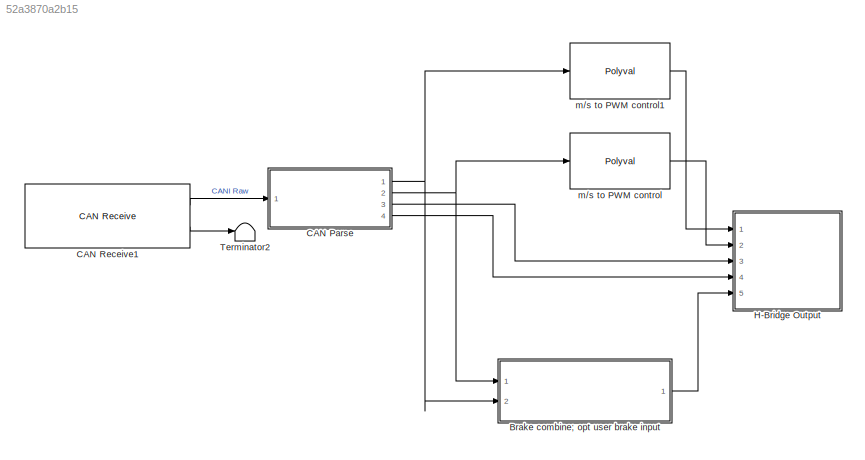
MODEL slx_52a3870a2b15
KIND model
CONFIG AbsTol = auto
CONFIG EnableMultiTasking = off
CONFIG FixedStep = 0.002
CONFIG MaxStep = 1
CONFIG MinStep = auto
CONFIG RelTol = 100e-3
CONFIG SampleTimeConstraint = Unconstrained
CONFIG SolverName = ode3
CONFIG StartTime = 0.0
CONFIG StopTime = inf
WORKSPACE source: mxarray member
WORKSPACE der = -0.0409742647059
WORKSPACE integ = 3.47058823529
WORKSPACE prop = 3.48235294118
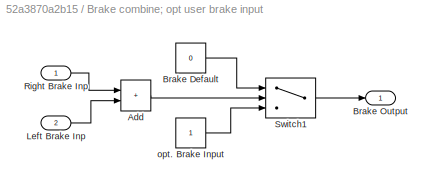
BLOCK [SubSystem] Brake combine; opt user brake input
  Ports = [2, 1]
  RequestExecContextInheritance = off
BLOCK [Sum] Brake combine; opt user brake input/Add
  IconShape = rectangular
  Ports = [2, 1]
BLOCK [Constant] Brake combine; opt user brake input/Brake Default
  Value = 0
BLOCK [Outport] Brake combine; opt user brake input/Brake Output
BLOCK [Inport] Brake combine; opt user brake input/Left Brake Inp
  Port = 2
BLOCK [Inport] Brake combine; opt user brake input/Right Brake Inp
BLOCK [Switch] Brake combine; opt user brake input/Switch1
  Criteria = u2 ~= 0
  InputSameDT = off
  SaturateOnIntegerOverflow = off
BLOCK [Constant] Brake combine; opt user brake input/opt. Brake Input
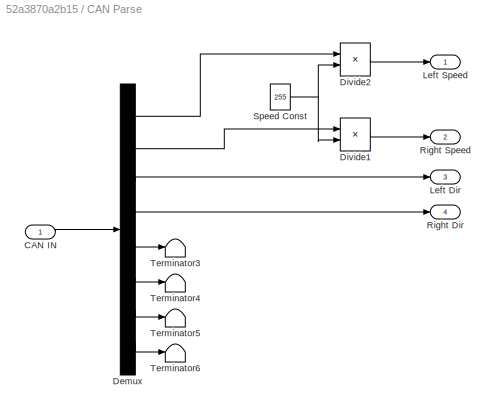
BLOCK [SubSystem] CAN Parse
  Ports = [1, 4]
  RequestExecContextInheritance = off
BLOCK [Inport] CAN Parse/CAN IN
BLOCK [Demux] CAN Parse/Demux
  Outputs = 8
  Ports = [1, 8]
BLOCK [Product] CAN Parse/Divide1
  Inputs = */
  Ports = [2, 1]
  RndMeth = Zero
  SaturateOnIntegerOverflow = on
BLOCK [Product] CAN Parse/Divide2
  Inputs = */
  Ports = [2, 1]
  RndMeth = Zero
  SaturateOnIntegerOverflow = on
BLOCK [Outport] CAN Parse/Left Dir
  Port = 3
  VectorParamsAs1DForOutWhenUnconnected = off
BLOCK [Outport] CAN Parse/Left Speed
  VectorParamsAs1DForOutWhenUnconnected = off
BLOCK [Outport] CAN Parse/Right Dir
  Port = 4
  VectorParamsAs1DForOutWhenUnconnected = off
BLOCK [Outport] CAN Parse/Right Speed
  Port = 2
  VectorParamsAs1DForOutWhenUnconnected = off
BLOCK [Constant] CAN Parse/Speed Const
  Value = 255
BLOCK [Terminator] CAN Parse/Terminator3
BLOCK [Terminator] CAN Parse/Terminator4
BLOCK [Terminator] CAN Parse/Terminator5
BLOCK [Terminator] CAN Parse/Terminator6
BLOCK [Reference] CAN Receive1  REF=arduinolib/CAN Receive
  Ports = [0, 2]
  SourceBlock = arduinolib/CAN Receive
  SourceProductBaseCode = ARDUINO
  SourceType = codertarget.arduinobase.internal.arduinoCANReceive
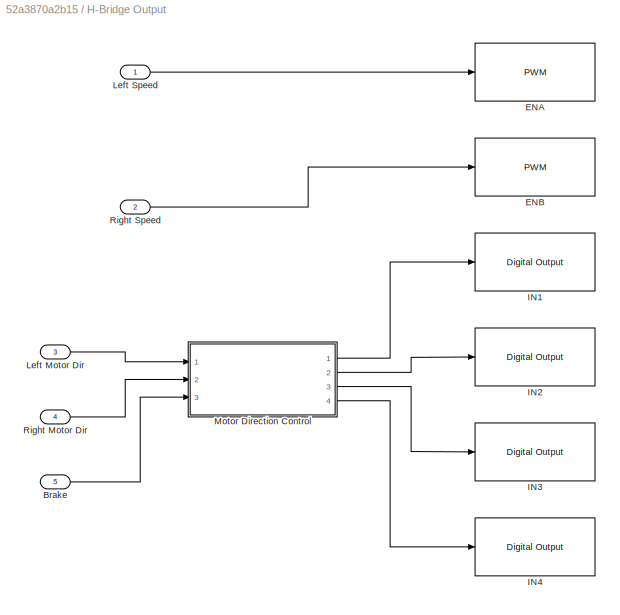
BLOCK [SubSystem] H-Bridge Output
  Ports = [5]
  RequestExecContextInheritance = off
BLOCK [Inport] H-Bridge Output/Brake
  Port = 5
BLOCK [Reference] H-Bridge Output/ENA  REF=arduinolib/PWM
  Ports = [1]
  SourceBlock = arduinolib/PWM
  SourceProductBaseCode = ARDUINO
  SourceType = Arduino PWM
BLOCK [Reference] H-Bridge Output/ENB  REF=arduinolib/PWM
  Ports = [1]
  SourceBlock = arduinolib/PWM
  SourceProductBaseCode = ARDUINO
  SourceType = Arduino PWM
BLOCK [Reference] H-Bridge Output/IN1  REF=arduinolib/Digital Output
  Ports = [1]
  SourceBlock = arduinolib/Digital Output
  SourceProductBaseCode = ARDUINO
  SourceType = Arduino Digital Output
BLOCK [Reference] H-Bridge Output/IN2  REF=arduinolib/Digital Output
  Ports = [1]
  SourceBlock = arduinolib/Digital Output
  SourceProductBaseCode = ARDUINO
  SourceType = Arduino Digital Output
BLOCK [Reference] H-Bridge Output/IN3  REF=arduinolib/Digital Output
  Ports = [1]
  SourceBlock = arduinolib/Digital Output
  SourceProductBaseCode = ARDUINO
  SourceType = Arduino Digital Output
BLOCK [Reference] H-Bridge Output/IN4  REF=arduinolib/Digital Output
  Ports = [1]
  SourceBlock = arduinolib/Digital Output
  SourceProductBaseCode = ARDUINO
  SourceType = Arduino Digital Output
BLOCK [Inport] H-Bridge Output/Left Motor Dir
  Port = 3
BLOCK [Inport] H-Bridge Output/Left Speed
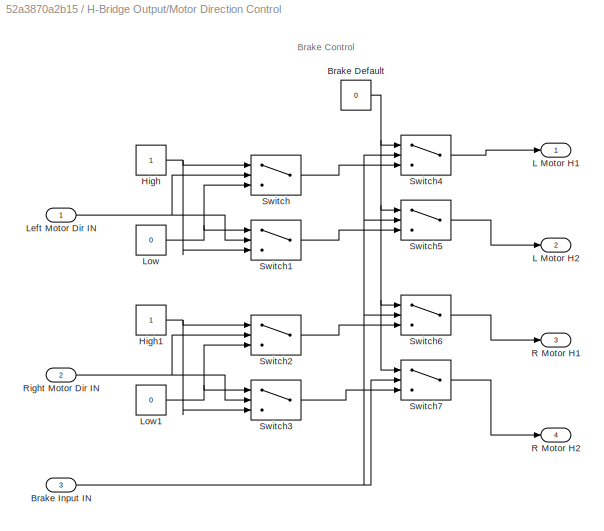
BLOCK [SubSystem] H-Bridge Output/Motor Direction Control
  Ports = [3, 4]
  RequestExecContextInheritance = off
BLOCK [Constant] H-Bridge Output/Motor Direction Control/Brake Default
  Value = 0
BLOCK [Inport] H-Bridge Output/Motor Direction Control/Brake Input IN
  Port = 3
BLOCK [Constant] H-Bridge Output/Motor Direction Control/High
BLOCK [Constant] H-Bridge Output/Motor Direction Control/High1
BLOCK [Outport] H-Bridge Output/Motor Direction Control/L Motor H1
BLOCK [Outport] H-Bridge Output/Motor Direction Control/L Motor H2
  Port = 2
BLOCK [Inport] H-Bridge Output/Motor Direction Control/Left Motor Dir IN
BLOCK [Constant] H-Bridge Output/Motor Direction Control/Low
  Value = 0
BLOCK [Constant] H-Bridge Output/Motor Direction Control/Low1
  Value = 0
BLOCK [Outport] H-Bridge Output/Motor Direction Control/R Motor H1
  Port = 3
BLOCK [Outport] H-Bridge Output/Motor Direction Control/R Motor H2
  Port = 4
BLOCK [Inport] H-Bridge Output/Motor Direction Control/Right Motor Dir IN
  Port = 2
BLOCK [Switch] H-Bridge Output/Motor Direction Control/Switch
  Criteria = u2 > Threshold
  InputSameDT = off
  SaturateOnIntegerOverflow = off
BLOCK [Switch] H-Bridge Output/Motor Direction Control/Switch1
  Criteria = u2 ~= 0
  InputSameDT = off
  SaturateOnIntegerOverflow = off
BLOCK [Switch] H-Bridge Output/Motor Direction Control/Switch2
  Criteria = u2 > Threshold
  InputSameDT = off
  SaturateOnIntegerOverflow = off
BLOCK [Switch] H-Bridge Output/Motor Direction Control/Switch3
  Criteria = u2 ~= 0
  InputSameDT = off
  SaturateOnIntegerOverflow = off
BLOCK [Switch] H-Bridge Output/Motor Direction Control/Switch4
  Criteria = u2 ~= 0
  InputSameDT = off
  SaturateOnIntegerOverflow = off
BLOCK [Switch] H-Bridge Output/Motor Direction Control/Switch5
  Criteria = u2 ~= 0
  InputSameDT = off
  SaturateOnIntegerOverflow = off
BLOCK [Switch] H-Bridge Output/Motor Direction Control/Switch6
  Criteria = u2 ~= 0
  InputSameDT = off
  SaturateOnIntegerOverflow = off
BLOCK [Switch] H-Bridge Output/Motor Direction Control/Switch7
  Criteria = u2 ~= 0
  InputSameDT = off
  SaturateOnIntegerOverflow = off
BLOCK [Inport] H-Bridge Output/Right Motor Dir
  Port = 4
BLOCK [Inport] H-Bridge Output/Right Speed
  Port = 2
BLOCK [Terminator] Terminator2
BLOCK [Polyval] m//s to PWM control
  Coefs = [142.48, 104.93, 19.758]
BLOCK [Polyval] m//s to PWM control1
  Coefs = [142.48, 104.93, 19.758]
ANNOTATION H-Bridge Output/Motor Direction Control: Brake Control
LINE Brake combine; opt user brake input/Add:1 -> Brake combine; opt user brake input/Switch1:2
LINE Brake combine; opt user brake input/Brake Default:1 -> Brake combine; opt user brake input/Switch1:1
LINE Brake combine; opt user brake input/Left Brake Inp:1 -> Brake combine; opt user brake input/Add:2
LINE Brake combine; opt user brake input/Right Brake Inp:1 -> Brake combine; opt user brake input/Add:1
LINE Brake combine; opt user brake input/Switch1:1 -> Brake combine; opt user brake input/Brake Output:1
LINE Brake combine; opt user brake input/opt. Brake Input:1 -> Brake combine; opt user brake input/Switch1:3
LINE Brake combine; opt user brake input:1 -> H-Bridge Output:5
LINE CAN Parse/CAN IN:1 -> CAN Parse/Demux:1
LINE CAN Parse/Demux:1 -> CAN Parse/Divide2:1
LINE CAN Parse/Demux:2 -> CAN Parse/Divide1:1
LINE CAN Parse/Demux:3 -> CAN Parse/Left Dir:1
LINE CAN Parse/Demux:4 -> CAN Parse/Right Dir:1
LINE CAN Parse/Demux:5 -> CAN Parse/Terminator3:1
LINE CAN Parse/Demux:6 -> CAN Parse/Terminator4:1
LINE CAN Parse/Demux:7 -> CAN Parse/Terminator5:1
LINE CAN Parse/Demux:8 -> CAN Parse/Terminator6:1
LINE CAN Parse/Divide1:1 -> CAN Parse/Right Speed:1
LINE CAN Parse/Divide2:1 -> CAN Parse/Left Speed:1
NET CAN Parse/Speed Const:1 -> CAN Parse/Divide1:2, CAN Parse/Divide2:2
NET CAN Parse:1 -> Brake combine; opt user brake input:2, m//s to PWM control1:1
NET CAN Parse:2 -> Brake combine; opt user brake input:1, m//s to PWM control:1
LINE CAN Parse:3 -> H-Bridge Output:3
LINE CAN Parse:4 -> H-Bridge Output:4
LINE CAN Receive1:1 -> CAN Parse:1
LINE CAN Receive1:2 -> Terminator2:1
LINE H-Bridge Output/Brake:1 -> H-Bridge Output/Motor Direction Control:3
LINE H-Bridge Output/Left Motor Dir:1 -> H-Bridge Output/Motor Direction Control:1
LINE H-Bridge Output/Left Speed:1 -> H-Bridge Output/ENA:1
NET H-Bridge Output/Motor Direction Control/Brake Default:1 -> H-Bridge Output/Motor Direction Control/Switch4:1, H-Bridge Output/Motor Direction Control/Switch5:1, H-Bridge Output/Motor Direction Control/Switch6:1, H-Bridge Output/Motor Direction Control/Switch7:1
NET H-Bridge Output/Motor Direction Control/Brake Input IN:1 -> H-Bridge Output/Motor Direction Control/Switch4:2, H-Bridge Output/Motor Direction Control/Switch5:2, H-Bridge Output/Motor Direction Control/Switch6:2, H-Bridge Output/Motor Direction Control/Switch7:2
NET H-Bridge Output/Motor Direction Control/High1:1 -> H-Bridge Output/Motor Direction Control/Switch2:1, H-Bridge Output/Motor Direction Control/Switch3:3
NET H-Bridge Output/Motor Direction Control/High:1 -> H-Bridge Output/Motor Direction Control/Switch1:3, H-Bridge Output/Motor Direction Control/Switch:1
NET H-Bridge Output/Motor Direction Control/Left Motor Dir IN:1 -> H-Bridge Output/Motor Direction Control/Switch1:2, H-Bridge Output/Motor Direction Control/Switch:2
NET H-Bridge Output/Motor Direction Control/Low1:1 -> H-Bridge Output/Motor Direction Control/Switch2:3, H-Bridge Output/Motor Direction Control/Switch3:1
NET H-Bridge Output/Motor Direction Control/Low:1 -> H-Bridge Output/Motor Direction Control/Switch1:1, H-Bridge Output/Motor Direction Control/Switch:3
NET H-Bridge Output/Motor Direction Control/Right Motor Dir IN:1 -> H-Bridge Output/Motor Direction Control/Switch2:2, H-Bridge Output/Motor Direction Control/Switch3:2
LINE H-Bridge Output/Motor Direction Control/Switch1:1 -> H-Bridge Output/Motor Direction Control/Switch5:3
LINE H-Bridge Output/Motor Direction Control/Switch2:1 -> H-Bridge Output/Motor Direction Control/Switch6:3
LINE H-Bridge Output/Motor Direction Control/Switch3:1 -> H-Bridge Output/Motor Direction Control/Switch7:3
LINE H-Bridge Output/Motor Direction Control/Switch4:1 -> H-Bridge Output/Motor Direction Control/L Motor H1:1
LINE H-Bridge Output/Motor Direction Control/Switch5:1 -> H-Bridge Output/Motor Direction Control/L Motor H2:1
LINE H-Bridge Output/Motor Direction Control/Switch6:1 -> H-Bridge Output/Motor Direction Control/R Motor H1:1
LINE H-Bridge Output/Motor Direction Control/Switch7:1 -> H-Bridge Output/Motor Direction Control/R Motor H2:1
LINE H-Bridge Output/Motor Direction Control/Switch:1 -> H-Bridge Output/Motor Direction Control/Switch4:3
LINE H-Bridge Output/Motor Direction Control:1 -> H-Bridge Output/IN1:1
LINE H-Bridge Output/Motor Direction Control:2 -> H-Bridge Output/IN2:1
LINE H-Bridge Output/Motor Direction Control:3 -> H-Bridge Output/IN3:1
LINE H-Bridge Output/Motor Direction Control:4 -> H-Bridge Output/IN4:1
LINE H-Bridge Output/Right Motor Dir:1 -> H-Bridge Output/Motor Direction Control:2
LINE H-Bridge Output/Right Speed:1 -> H-Bridge Output/ENB:1
LINE m//s to PWM control1:1 -> H-Bridge Output:1
LINE m//s to PWM control:1 -> H-Bridge Output:2
note: NET lines group one-source signal fan-out (src -> all destinations, sorted); 1:1 wires keep LINE
